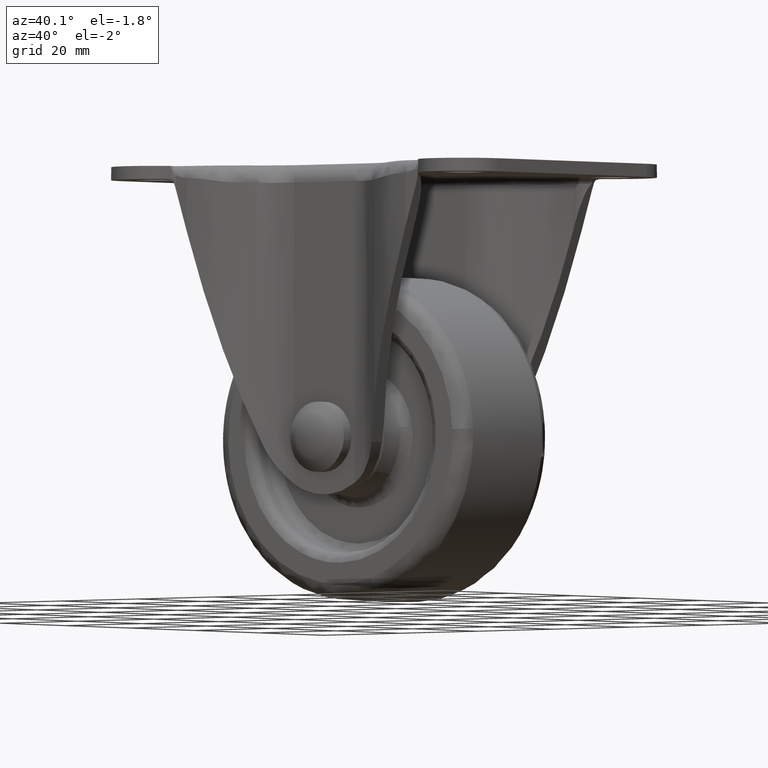
[diagram: clean part render]
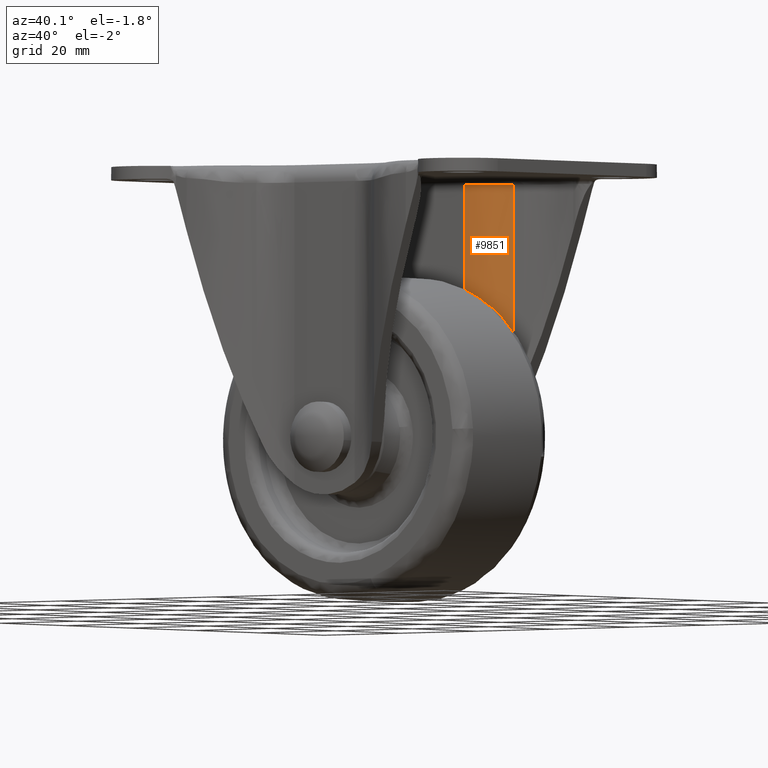
[diagram: same view with one face highlighted and labeled with its STEP entity id]
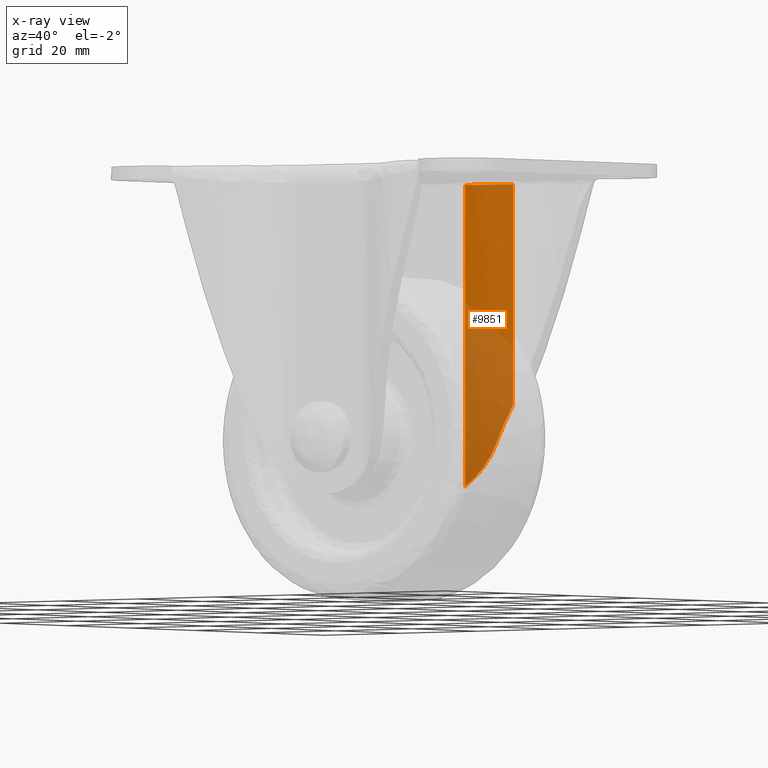
[diagram: x-ray of the same camera — body ghosted, the highlighted face saturated]
A machine part, auxiliary view. The second image highlights one B-rep face of the part: STEP entity #9851.
The next image is the same camera in x-ray: the body ghosted, the highlighted face saturated — about 48% of this face is hidden behind the body in this view.
In plain terms, the highlighted face is a freeform B-spline surface patch.
Its self-contained STEP definition (entity closure, byte-faithful):
#7656=CARTESIAN_POINT('',(7.828796000000001,15.800000000000001,-3.599999999999935));
#7657=VERTEX_POINT('',#7656);
#7704=CARTESIAN_POINT('',(17.009614765242901,19.770251058126650,-3.599999999999935));
#7705=VERTEX_POINT('',#7704);
#7735=CARTESIAN_POINT('',(17.009614765242890,19.770251058126661,-3.599999999999935));
#7736=CARTESIAN_POINT('',(13.277674211362063,15.800000000000001,-3.599999999999935));
#7737=CARTESIAN_POINT('',(7.828796000000001,15.800000000000001,-3.599999999999935));
#7745=(BOUNDED_CURVE()B_SPLINE_CURVE(2,(#7735,#7736,#7737),.UNSPECIFIED.,.F.,.U.)CURVE()GEOMETRIC_REPRESENTATION_ITEM()QUASI_UNIFORM_CURVE()RATIONAL_B_SPLINE_CURVE((1.0,0.917850943691972,1.0))REPRESENTATION_ITEM(''));
#7746=EDGE_CURVE('',#7705,#7657,#7745,.T.);
#8717=CARTESIAN_POINT('',(17.009614765242901,19.770251058126650,-47.452488950050103));
#8718=VERTEX_POINT('',#8717);
#8732=CARTESIAN_POINT('',(14.222149999999999,17.542512968891700,-55.767646999999997));
#8733=VERTEX_POINT('',#8732);
#8734=CARTESIAN_POINT('',(17.009614765242890,19.770251058126650,-47.452488950050103));
#8735=CARTESIAN_POINT('',(15.775210812742111,18.457021780271322,-51.134782656687328));
#8736=CARTESIAN_POINT('',(14.222150000000029,17.542512968891760,-55.767646999999997));
#8744=(BOUNDED_CURVE()B_SPLINE_CURVE(2,(#8734,#8735,#8736),.UNSPECIFIED.,.F.,.U.)CURVE()GEOMETRIC_REPRESENTATION_ITEM()QUASI_UNIFORM_CURVE()RATIONAL_B_SPLINE_CURVE((1.0,0.989924060717848,1.0))REPRESENTATION_ITEM(''));
#8745=EDGE_CURVE('',#8718,#8733,#8744,.T.);
#8857=CARTESIAN_POINT('',(7.828796000000001,15.800000000000001,-63.794919933581497));
#8858=VERTEX_POINT('',#8857);
#8859=CARTESIAN_POINT('',(7.828796000000048,15.800000000000001,-63.794919933581539));
#8860=CARTESIAN_POINT('',(8.208994198126499,15.800000000000001,-63.562288986574643));
#8861=CARTESIAN_POINT('',(8.576451501571819,15.817149351960730,-63.314216973449518));
#8862=CARTESIAN_POINT('',(9.286790434313074,15.879561852339000,-62.787747134809997));
#8863=CARTESIAN_POINT('',(9.629669661174777,15.924847051040519,-62.509348451048083));
#8864=CARTESIAN_POINT('',(10.125725049290450,16.009993393731101,-62.068812799270120));
#8865=CARTESIAN_POINT('',(10.288366913789980,16.041332938595978,-61.917788027597418));
#8866=CARTESIAN_POINT('',(10.604672591624739,16.108513118313780,-61.610820319040620));
#8867=CARTESIAN_POINT('',(10.758610376071040,16.144385789612102,-61.454664206466973));
#8868=CARTESIAN_POINT('',(11.208256393483261,16.257726108456630,-60.978263133754929));
#8869=CARTESIAN_POINT('',(11.491829869599741,16.340900457273509,-60.650106608045732));
#8870=CARTESIAN_POINT('',(12.028264389732410,16.517064160955030,-59.972600841212028));
#8871=CARTESIAN_POINT('',(12.281121119020890,16.610069469514549,-59.623252303845092));
#8872=CARTESIAN_POINT('',(12.756780677681510,16.800835034552119,-58.902592086563843));
#8873=CARTESIAN_POINT('',(12.979584365637720,16.898608321249270,-58.531284359375967));
#8874=CARTESIAN_POINT('',(13.291038114733089,17.044954032944538,-57.956707448350372));
#8875=CARTESIAN_POINT('',(13.390558533434779,17.093448992345689,-57.763135630919997));
#8876=CARTESIAN_POINT('',(13.580516166260150,17.188888846503929,-57.373118652509802));
#8877=CARTESIAN_POINT('',(13.671063370269611,17.235885573253722,-57.176471280957507));
#8878=CARTESIAN_POINT('',(13.929607184217099,17.373746840774189,-56.581495684339082));
#8879=CARTESIAN_POINT('',(14.084539919731739,17.461482252059881,-56.178145422114497));
#8880=CARTESIAN_POINT('',(14.222149999999960,17.542512968891721,-55.767646999999982));
#8881=B_SPLINE_CURVE_WITH_KNOTS('',3,(#8859,#8860,#8861,#8862,#8863,#8864,#8865,#8866,#8867,#8868,#8869,#8870,#8871,#8872,#8873,#8874,#8875,#8876,#8877,#8878,#8879,#8880),.UNSPECIFIED.,.F.,.U.,(4,2,2,2,2,2,2,2,2,2,4),(0.0,0.125000000000000,0.249999999999999,0.312499999999999,0.374999999999999,0.499999999999999,0.625000000000000,0.750000000000001,0.812500000000001,0.875000000000000,1.0),.UNSPECIFIED.);
#8882=EDGE_CURVE('',#8858,#8733,#8881,.T.);
#9171=CARTESIAN_POINT('',(7.828796000000001,15.800000000000001,-63.794919933581497));
#9172=CARTESIAN_POINT('',(7.828796000000001,15.800000000000001,-3.599999999999935));
#9173=QUASI_UNIFORM_CURVE('',1,(#9171,#9172),.UNSPECIFIED.,.F.,.U.);
#9174=EDGE_CURVE('',#8858,#7657,#9173,.T.);
#9826=CARTESIAN_POINT('',(17.232369219909462,20.013534075797988,-65.299792931921033));
#9827=CARTESIAN_POINT('',(17.232369219909462,20.013534075797988,-2.057505176701909));
#9828=CARTESIAN_POINT('',(13.273492604237958,15.574526457985884,-65.299792931921033));
#9829=CARTESIAN_POINT('',(13.273492604237958,15.574526457985884,-2.057505176701910));
#9830=CARTESIAN_POINT('',(7.330252106631650,15.809866800292186,-65.299792931921019));
#9831=CARTESIAN_POINT('',(7.330252106631650,15.809866800292186,-2.057505176701909));
#9839=(BOUNDED_SURFACE()B_SPLINE_SURFACE(1,2,((#9826,#9828,#9830),(#9827,#9829,#9831)),.UNSPECIFIED.,.F.,.F.,.U.)B_SPLINE_SURFACE_WITH_KNOTS((2,2),(3,3),(0.0,63.242287755219117),(0.0,11.298019589311540),.UNSPECIFIED.)GEOMETRIC_REPRESENTATION_ITEM()RATIONAL_B_SPLINE_SURFACE(((1.0,0.903493165949477,0.998201159274819),(1.0,0.903493165949477,0.998201159274819)))REPRESENTATION_ITEM('')SURFACE());
#9840=CARTESIAN_POINT('',(17.009614765242901,19.770251058126650,-47.452488950050103));
#9841=CARTESIAN_POINT('',(17.009614765242901,19.770251058126650,-3.599999999999935));
#9842=QUASI_UNIFORM_CURVE('',1,(#9840,#9841),.UNSPECIFIED.,.F.,.U.);
#9843=EDGE_CURVE('',#8718,#7705,#9842,.T.);
#9844=ORIENTED_EDGE('',*,*,#9843,.T.);
#9845=ORIENTED_EDGE('',*,*,#7746,.T.);
#9846=ORIENTED_EDGE('',*,*,#9174,.F.);
#9847=ORIENTED_EDGE('',*,*,#8882,.T.);
#9848=ORIENTED_EDGE('',*,*,#8745,.F.);
#9849=EDGE_LOOP('',(#9844,#9845,#9846,#9847,#9848));
#9850=FACE_OUTER_BOUND('',#9849,.T.);
#9851=ADVANCED_FACE('',(#9850),#9839,.T.);